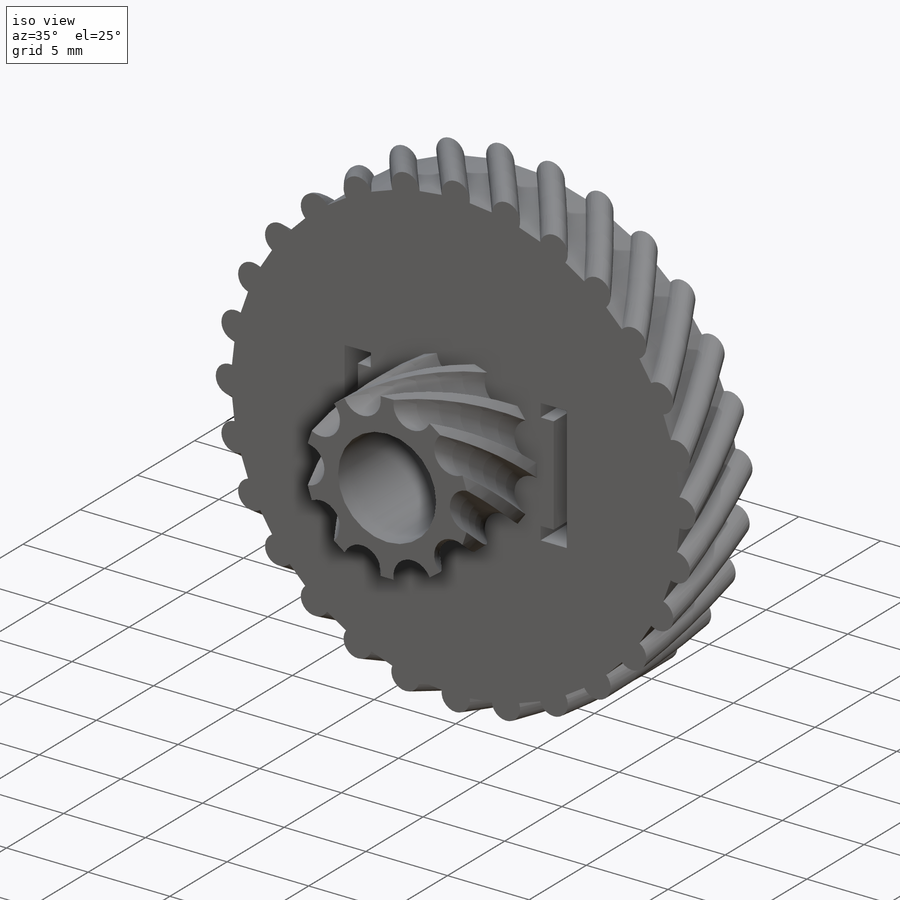
[diagram: iso view]
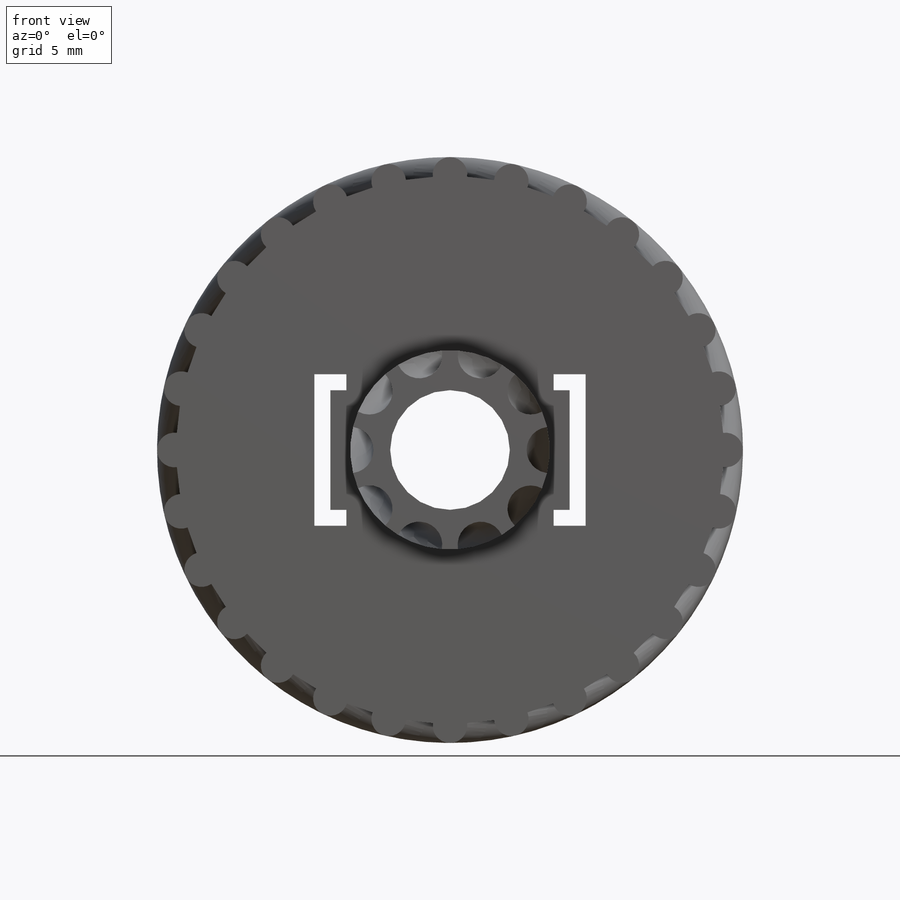
[diagram: front view]
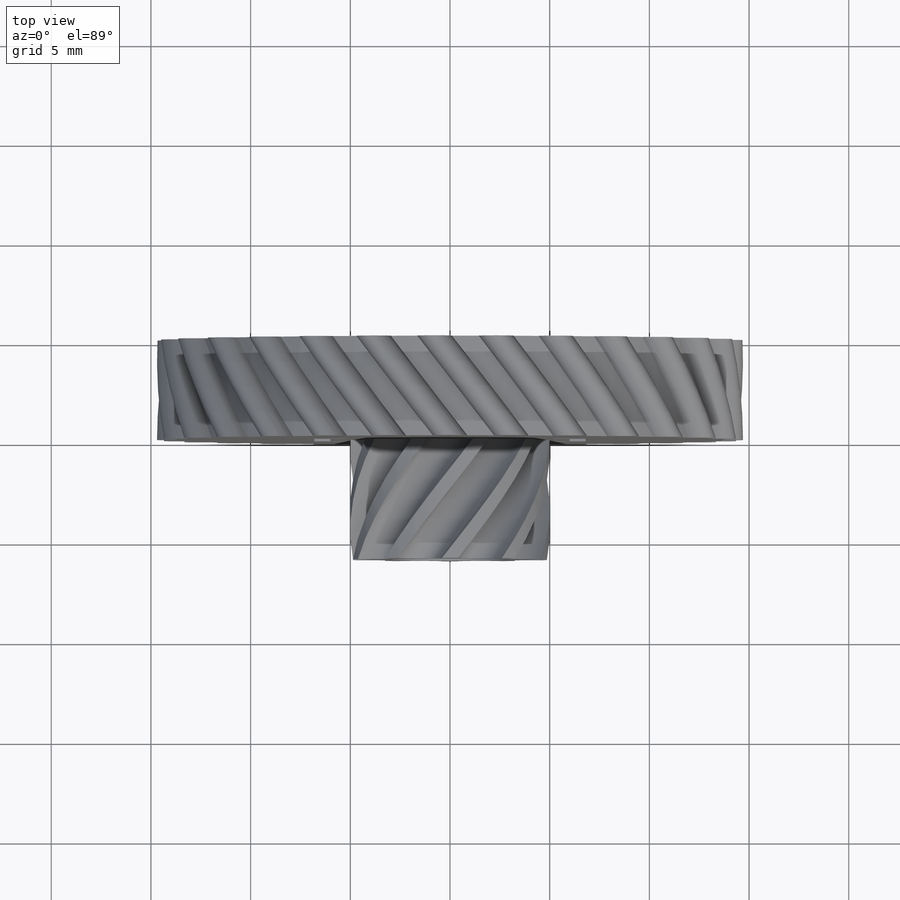
[diagram: top view]
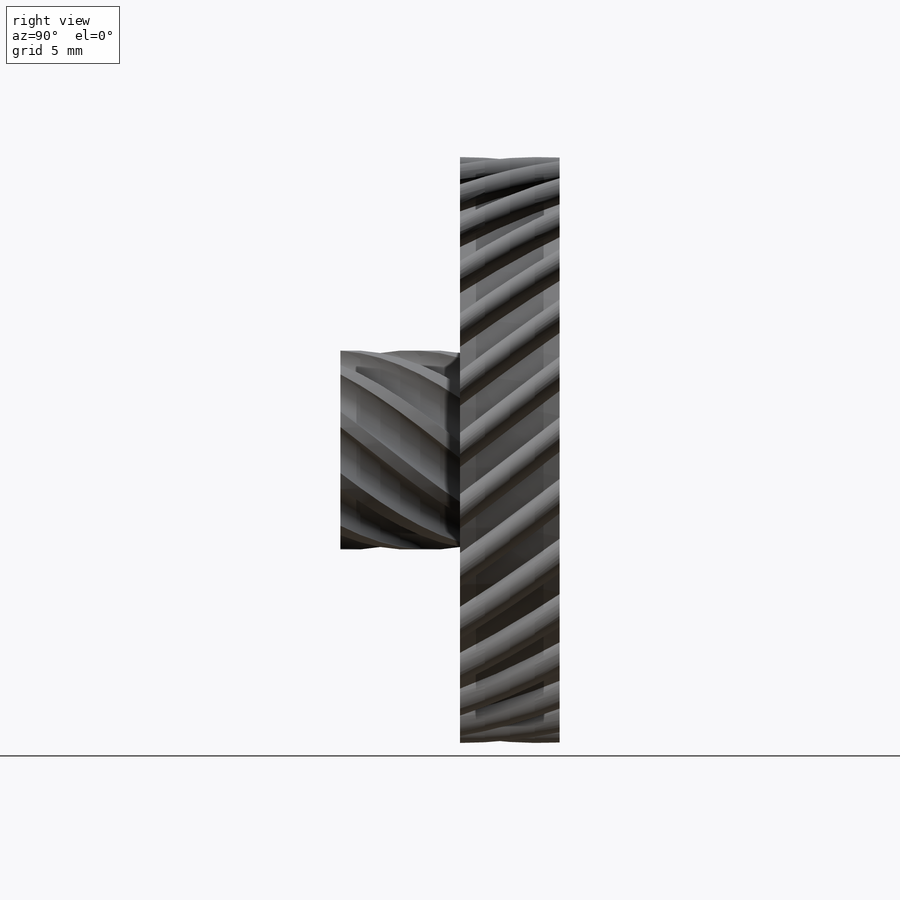
[diagram: right view]
SOLIDWORKS PART (.sldprt)
format: sldprt  version: not decoded by parser v0  size: 869,376 bytes
history: native  units: mm
features: sketch x10, cut_extrude x4, extrude x2, helix x2, sweep x2, material x1, pattern_circular x1 (+16 scaffold rows collapsed)
feature tree (38):
  scaffold x16  (default folders/planes/origin — collapsed)
  material  "Titanium"
  sketch  "Sketch1"  dims[c1.DIA=~27.649798mm c1.D2=~27.449798mm c1.D6=0.4mm c1.D7=0.4mm c1.D1=~29.512293mm c1.D3=~6.686055mm c2.D1=0.576mm c2.D4=~27.071759mm c3.D4=95.0deg c3.D3=0.576mm c3.D5=~4.097961mm c4.D5=90.0deg c4.D1=~0.002119mm]
  extrude  "Extrude1"  Depth=5mm
  sketch  "Sketch2"  dims[D1=~27.77487mm]
  helix  "Helix/Spiral1"  Pitch=5mm
  sketch  "Sketch3"  dims[c1.D1=~27.77487mm c2.D1=~29.387221mm]
  sweep  "Sweep1"
  sketch  "Sketch4"  dims[D1=3.175mm]
  cut_extrude  "Extrude2"  Depth=3.6mm
  sketch  "Sketch5"  dims[c1.D1=10.0mm c1.MIN_DIA=2.1225mm c1.D4=2.3225mm c1.D2=9.525mm c2.D2=87.9deg c2.D3=7.9375mm c3.D3=~23.263897deg c4.D3=~30.778935mm c5.D3=20.0deg]
  sketch  "Sketch6"  dims[D1=10.0mm]
  extrude  "Extrude3"  Depth=6mm
  sketch  "Sketch7"  dims[D1=3.175mm]
  cut_extrude  "Extrude4"  [1 undecoded]
  sketch  "Sketch8"  dims[D1=~6.54543mm]
  helix  "Helix/Spiral2"  Pitch=6mm
  sweep  "Cut-Sweep2"
  pattern_circular  "CirPattern1"  Count=10 Angle=360deg
  sketch  "Sketch9"  dims[LOCK=6.0mm LOCK_H=3.0mm LOCK_DIA=0.8mm D4=12.0mm D1=6.0mm D2=0.8mm D3=0.8mm D5=0.8mm]
  cut_extrude  "Extrude5"  Depth=0.5mm
  sketch  "Sketch10"  dims[D1=0.8mm D2=0.8mm]
  cut_extrude  "Extrude6"  Depth=0.576mm SIZE=0.576mm
decode coverage: 18 of 21 modeling features carry decoded parameters
note: ~ marks probable driven/reference dimensions
note: 1 parameter value undecoded
note: suppression state not decoded; provenance and decode notes live in map.json
